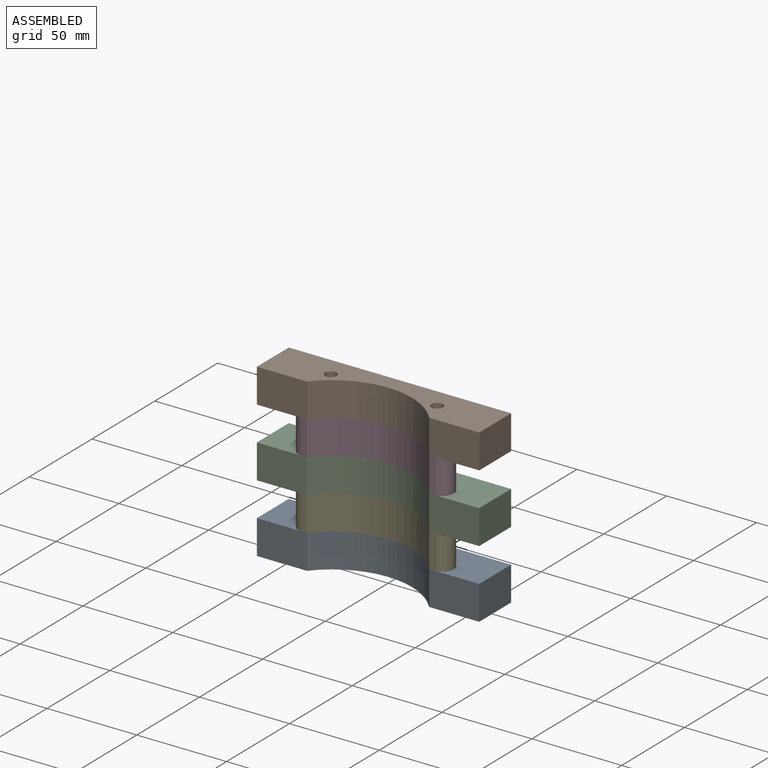
[diagram: assembled view]
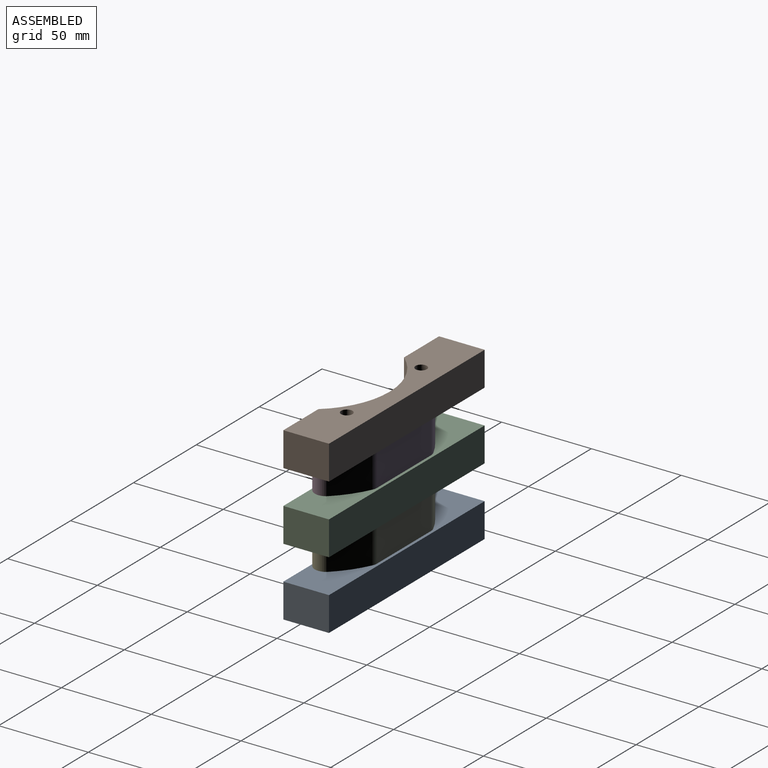
[diagram: assembled view, second angle]
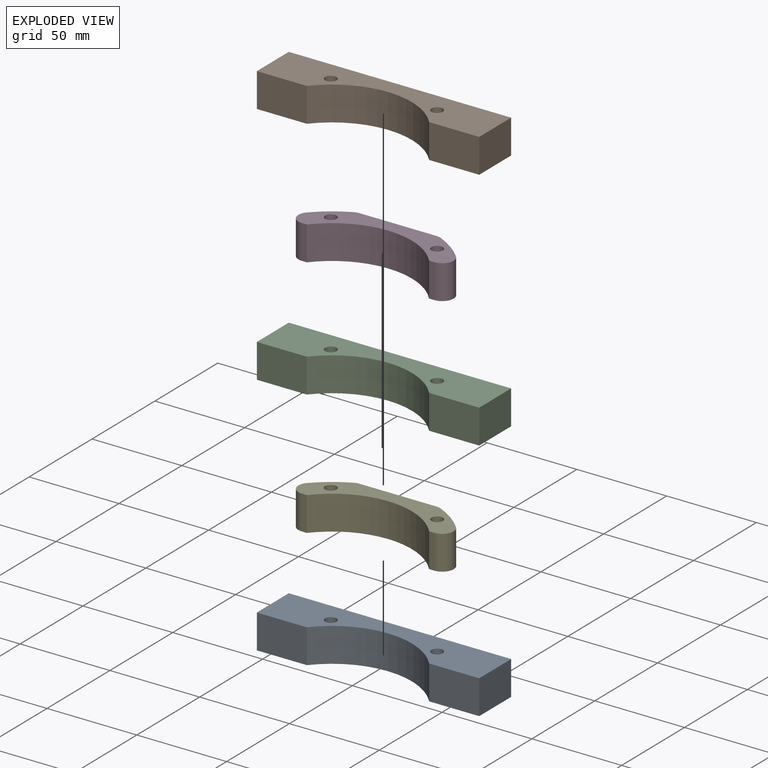
[diagram: exploded view]
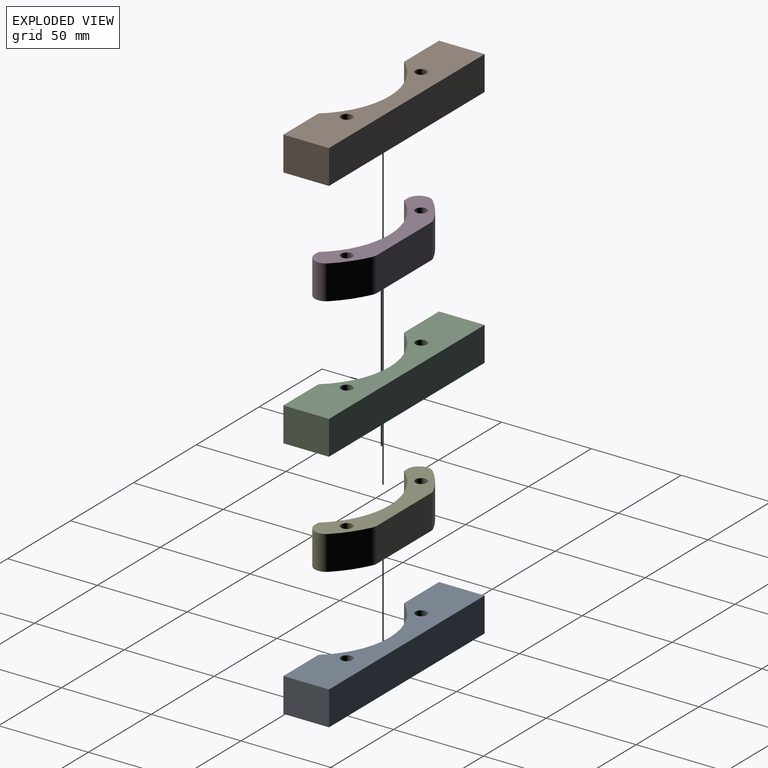
[diagram: exploded view, second angle]
ASSEMBLY  parts=5 mates=4
PART A: 10 faces, bbox 123.8x25.4x19.1 mm
  f0: plane 27.86x19.05mm, normal (0,-1,0), area 530.8mm2, adj f1,f6,f8,f9
  f1: cylinder r=44.45mm len=68.1mm, axis (0,0,-1), area 1477.7mm2, adj f0,f2,f8,f9
  f2: plane 27.86x19.05mm, normal (0,-1,0), area 530.8mm2, adj f1,f3,f8,f9
  f3: plane 25.4x19.05mm, normal (1,0,0), area 483.9mm2, adj f2,f4,f8,f9
  f4: plane 123.83x19.05mm, normal (0,1,0), area 2358.9mm2, adj f3,f6,f8,f9
  f5: cylinder r=3.17mm len=19.05mm, axis (0,0,-1), area 380mm2, adj f8,f9
  f6: plane 25.4x19.05mm, normal (-1,0,0), area 483.9mm2, adj f0,f4,f8,f9
  f7: cylinder r=3.17mm len=19.05mm, axis (0,0,-1), area 380mm2, adj f8,f9
  f8: plane 123.83x25.4mm, normal (0,0,1), area 2330.7mm2, adj f0,f1,f2,f3,f4,f5,f6,f7
  f9: plane 123.83x25.4mm, normal (0,0,-1), area 2330.7mm2, adj f0,f1,f2,f3,f4,f5,f6,f7
PART B: same geometry as A
PART C: same geometry as A
PART D: 14 faces, bbox 86.5x23.8x19.1 mm
  f0: plane 19.05x2.84mm, normal (0,-1,0), area 54.1mm2, adj f1,f11,f12,f13
  f1: cylinder r=6.35mm len=19.05mm, axis (0,0,-1), area 281.7mm2, adj f0,f2,f12,f13
  f2: cylinder r=57.15mm len=19.05mm, axis (0,0,-1), area 409.7mm2, adj f1,f3,f12,f13
  f3: cylinder r=6.35mm len=19.05mm, axis (0,0,-1), area 52.8mm2, adj f2,f4,f12,f13
  f4: plane 42.95x19.05mm, normal (0,1,0), area 818.2mm2, adj f3,f5,f12,f13
  f5: cylinder r=6.35mm len=19.05mm, axis (0,0,-1), area 52.8mm2, adj f4,f6,f12,f13
  f6: cylinder r=57.15mm len=19.05mm, axis (0,0,-1), area 409.7mm2, adj f5,f7,f12,f13
  f7: cylinder r=6.35mm len=19.05mm, axis (0,0,-1), area 281.7mm2, adj f6,f8,f12,f13
  f8: plane 19.05x2.84mm, normal (0,-1,0), area 54.1mm2, adj f7,f11,f12,f13
  f9: cylinder r=3.17mm len=19.05mm, axis (0,0,-1), area 380mm2, adj f12,f13
  f10: cylinder r=3.17mm len=19.05mm, axis (0,0,-1), area 380mm2, adj f12,f13
  f11: cylinder r=44.45mm len=68.1mm, axis (0,0,-1), area 1477.7mm2, adj f0,f8,f12,f13
  f12: plane 86.48x23.81mm, normal (0,0,1), area 967.6mm2, adj f0,f1,f2,f3,f4,f5,f6,f7
  f13: plane 86.48x23.81mm, normal (0,0,-1), area 967.6mm2, adj f0,f1,f2,f3,f4,f5,f6,f7
PART E: same geometry as D
PLACE A t=(-42.67,-126.52,-66.88)mm
PLACE B t=(-42.67,-126.52,9.32)mm
PLACE C t=(-42.67,-126.52,-28.78)mm
PLACE D t=(-42.67,-126.52,-9.73)mm
PLACE E t=(-42.67,-126.52,-47.83)mm
MATE fastened C.f7 <-> D.f9  axis (0,0,1) through (-72.29,-85.24,-9.73)mm
MATE fastened B.f7 <-> D.f9  axis (0,0,-1) through (-72.29,-85.24,9.32)mm
MATE fastened E.f9 <-> A.f7  axis (0,0,-1) through (-72.29,-85.24,-47.83)mm
MATE fastened E.f9 <-> C.f7  axis (0,0,1) through (-72.29,-85.24,-28.78)mm
